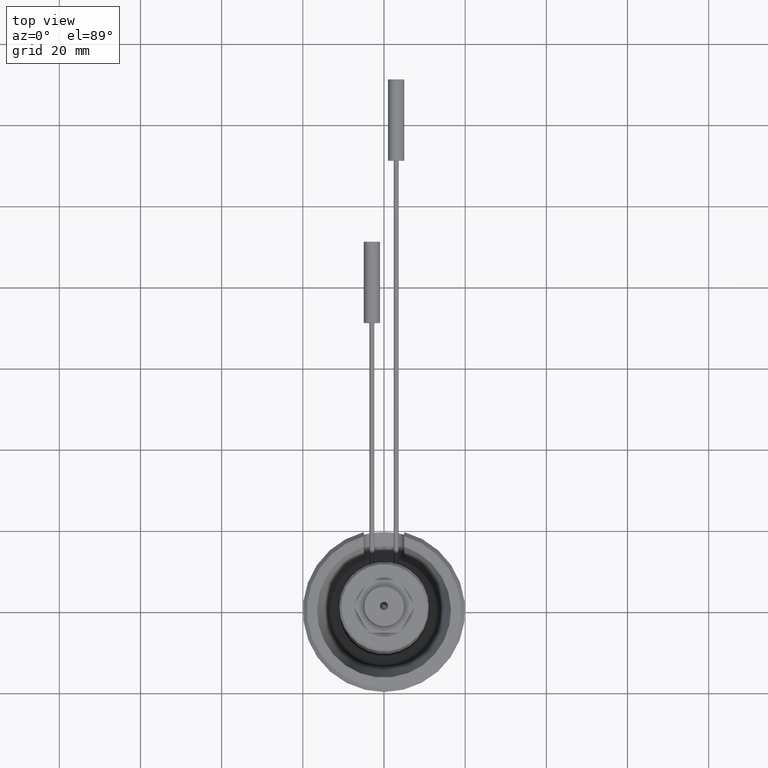
[diagram: clean part render]
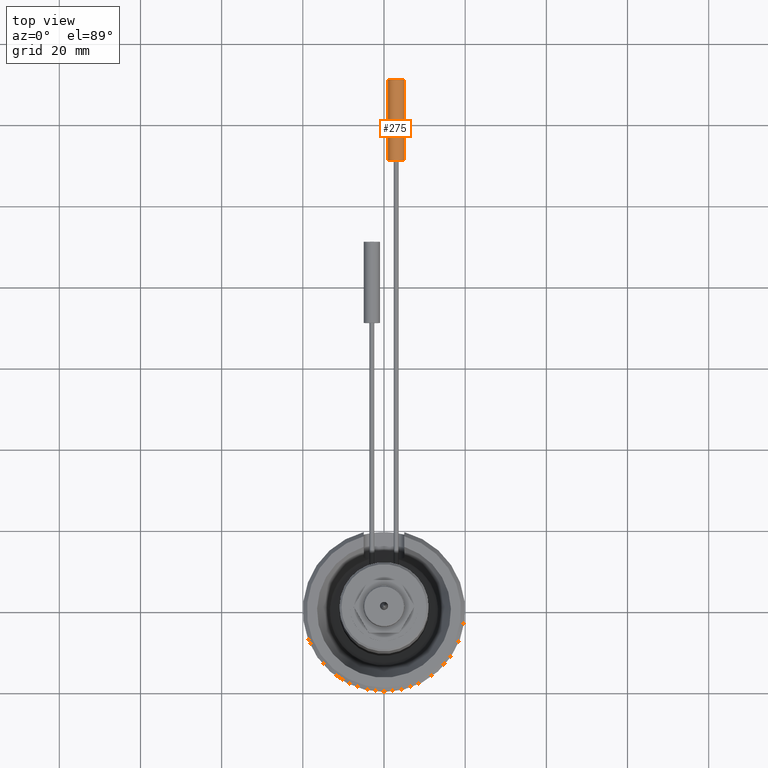
[diagram: same view with one face highlighted and labeled with its STEP entity id]
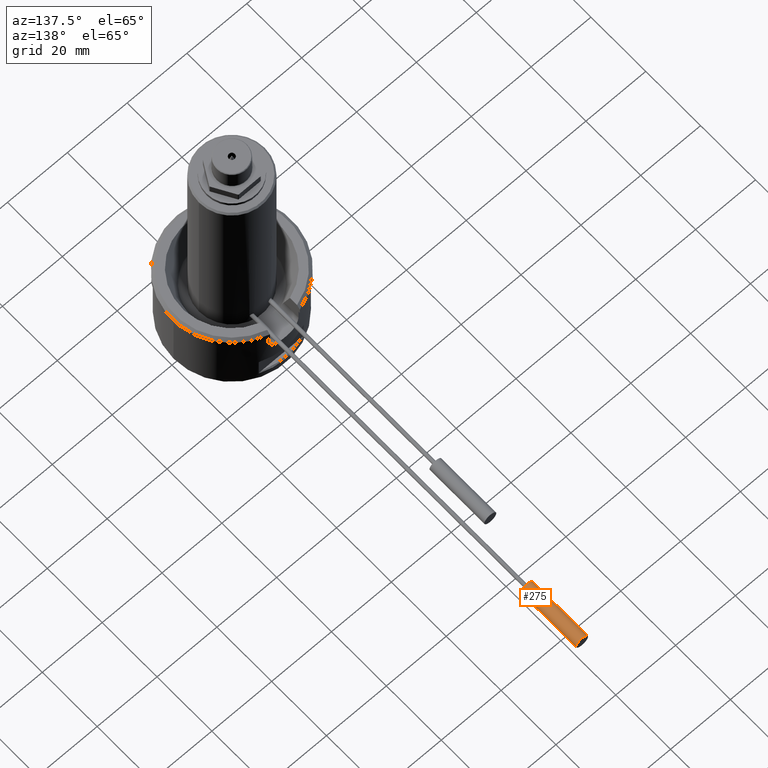
[diagram: same view with one face highlighted and labeled with its STEP entity id]
A machine part, top view. The second image highlights one B-rep face of the part: STEP entity #275.
A second angle (auxiliary view) of the same face is appended — the face is thin or edge-on in the first view.
In plain terms, the highlighted cylindrical surface (bore or boss wall) has radius 2 mm, axis along (0, -1, 0).
Its self-contained STEP definition (entity closure, byte-faithful):
#53=CYLINDRICAL_SURFACE('',#1227,2.);
#275=ADVANCED_FACE('',(#397,#398),#53,.T.);
#397=FACE_BOUND('',#489,.T.);
#398=FACE_BOUND('',#490,.T.);
#489=EDGE_LOOP('',(#719));
#490=EDGE_LOOP('',(#720));
#719=ORIENTED_EDGE('',*,*,#1041,.F.);
#720=ORIENTED_EDGE('',*,*,#1042,.T.);
#901=VERTEX_POINT('',#2247);
#902=VERTEX_POINT('',#2249);
#1041=EDGE_CURVE('',#901,#901,#1108,.T.);
#1042=EDGE_CURVE('',#902,#902,#1109,.T.);
#1108=CIRCLE('',#1225,2.);
#1109=CIRCLE('',#1226,2.);
#1225=AXIS2_PLACEMENT_3D('',#2246,#1525,#1526);
#1226=AXIS2_PLACEMENT_3D('',#2248,#1527,#1528);
#1227=AXIS2_PLACEMENT_3D('',#2250,#1529,#1530);
#1525=DIRECTION('',(0.,1.,0.));
#1526=DIRECTION('',(1.,0.,0.));
#1527=DIRECTION('',(0.,1.,0.));
#1528=DIRECTION('',(1.,0.,0.));
#1529=DIRECTION('',(0.,-1.,0.));
#1530=DIRECTION('',(0.,0.,-1.));
#2246=CARTESIAN_POINT('',(3.,131.,18.5));
#2247=CARTESIAN_POINT('',(5.,131.,18.5));
#2248=CARTESIAN_POINT('',(3.,111.,18.5));
#2249=CARTESIAN_POINT('',(5.,111.,18.5));
#2250=CARTESIAN_POINT('',(3.,131.,18.5));